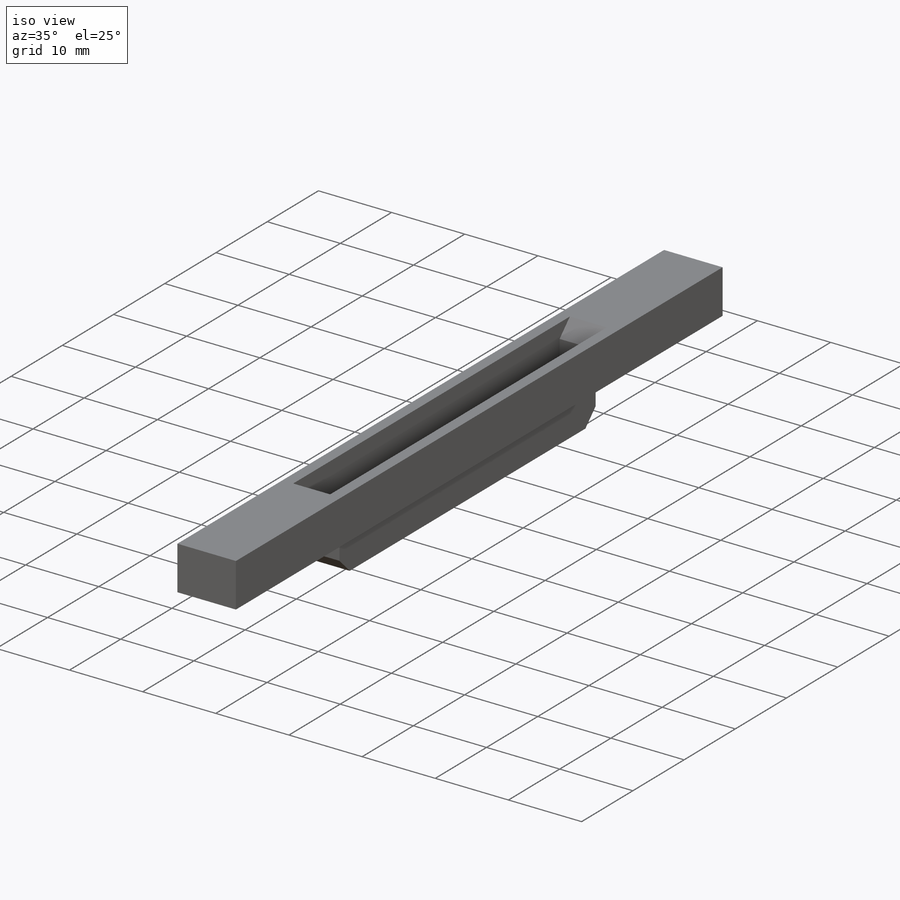
[diagram: iso view]
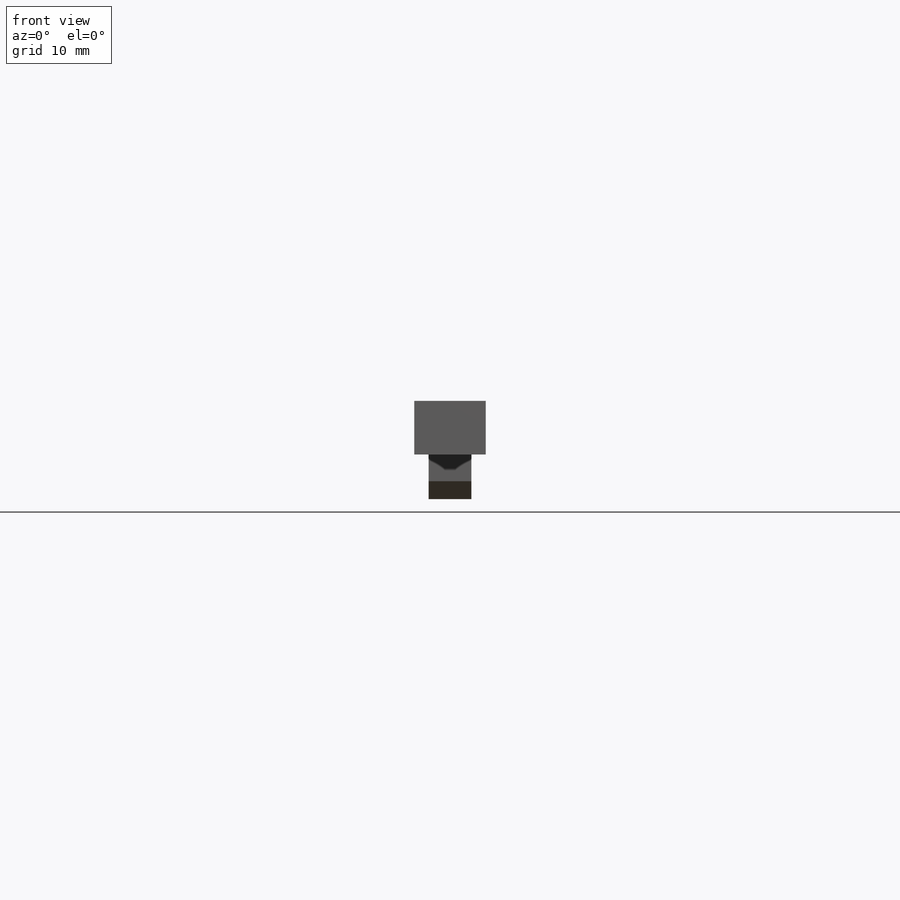
[diagram: front view]
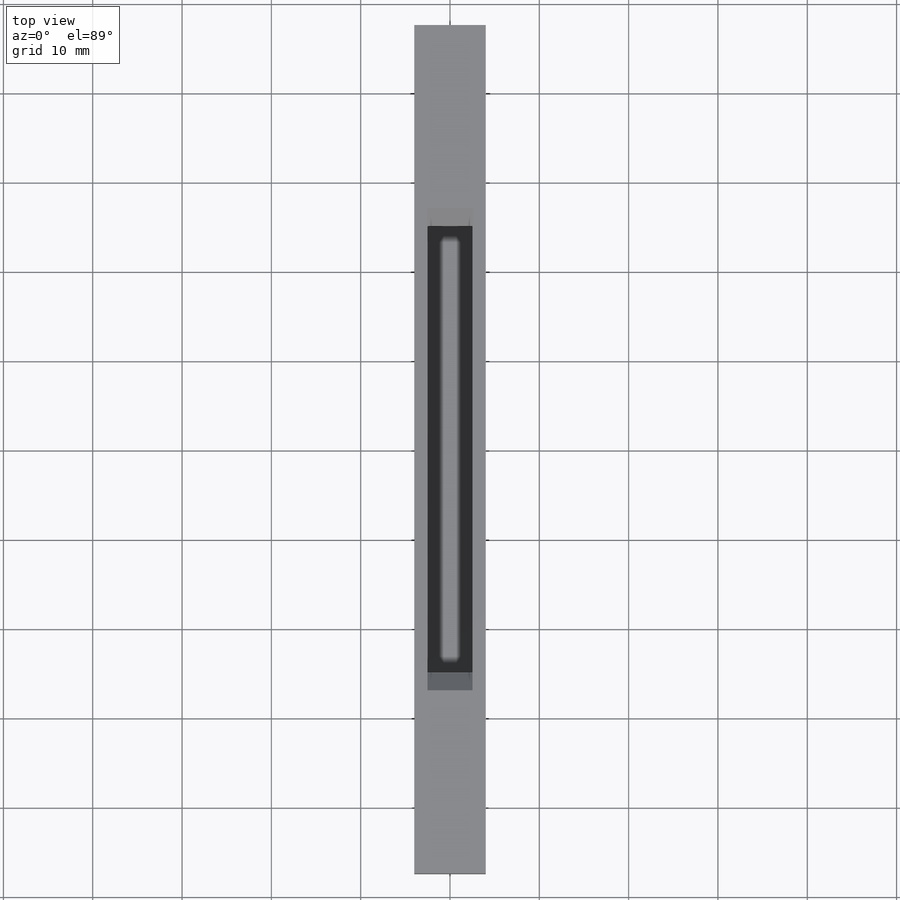
[diagram: top view]
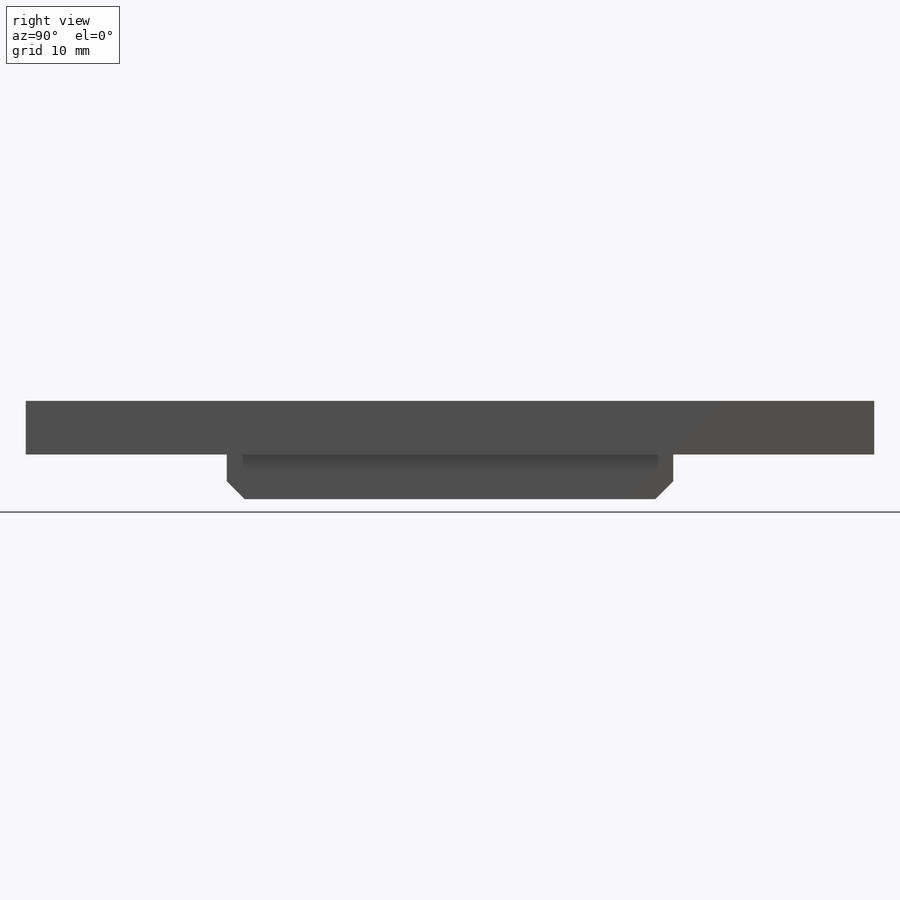
[diagram: right view]
SOLIDWORKS PART (.sldprt)
format: sldprt  version: not decoded by parser v0  size: 148,480 bytes
history: native  units: mm
features: sketch x3, extrude x3, material x1, chamfer x1 (+11 scaffold rows collapsed)
feature tree (19):
  scaffold x11  (default folders/planes/origin — collapsed)
  material  "Material <not specified>"
  sketch  "Sketch1"  dims[c1.D1=~77.934836mm c1.D2=~55.054884mm c2.D1=8.0mm c2.D2=95.0mm c2.D3=~68.104267mm c2.D4=~3.818059mm c3.D3=50.0mm c3.D4=5.05mm]
  extrude  "Boss-Extrude1"  Depth=5mm
  extrude  "Boss-Extrude2"  [1 undecoded]
  sketch  "Sketch1<2>"  dims[D1=1.0mm]
  sketch  "Sketch2"  dims[c1.D1=~57.046881mm c1.D2=~6.729269mm c2.D1=4.8mm c2.D2=50.0mm]
  extrude  "Boss-Extrude3"  Depth=5mm
  chamfer  "Chamfer2"  Distance=2mm Angle=45deg
decode coverage: 6 of 7 modeling features carry decoded parameters
note: ~ marks probable driven/reference dimensions
note: 1 parameter value undecoded
note: suppression state not decoded; provenance and decode notes live in map.json
